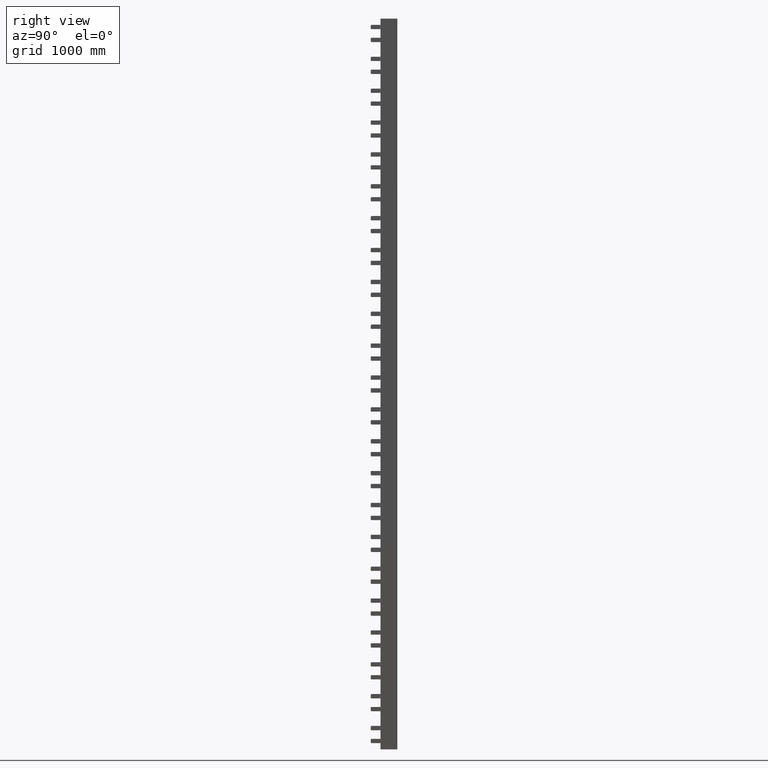
[diagram: clean part render]
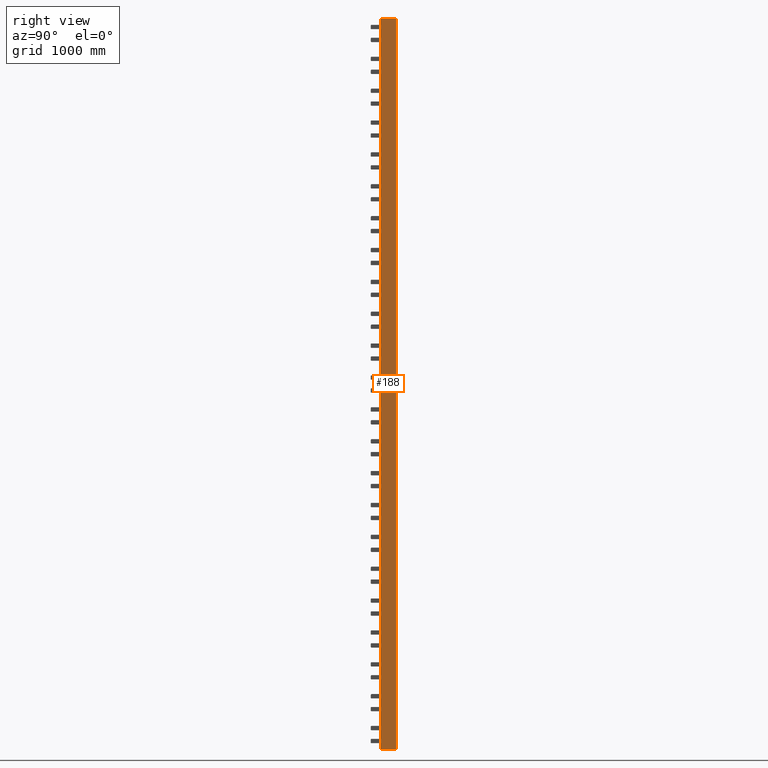
[diagram: same view with one face highlighted and labeled with its STEP entity id]
A machine part, right view. The second image highlights one B-rep face of the part: STEP entity #188.
In plain terms, the highlighted planar face has unit normal (1, 0, 0).
Its self-contained STEP definition (entity closure, byte-faithful):
#149=CARTESIAN_POINT('',(6910.0208871468158,6046.4066631202568,0.0));
#150=DIRECTION('',(1.0,2.162521E-013,0.0));
#151=DIRECTION('',(0.0,0.0,-1.0));
#152=AXIS2_PLACEMENT_3D('',#149,#150,#151);
#153=PLANE('',#152);
#154=CARTESIAN_POINT('',(6910.0208871467676,6266.4066631202204,90.0));
#155=VERTEX_POINT('',#154);
#156=CARTESIAN_POINT('',(6910.0208871467676,6266.4066631202204,-10000.0));
#157=VERTEX_POINT('',#156);
#158=CARTESIAN_POINT('',(6910.0208871467676,6266.4066631202204,90.0));
#159=DIRECTION('',(0.0,0.0,-1.0));
#160=VECTOR('',#159,10090.0);
#161=LINE('',#158,#160);
#162=EDGE_CURVE('',#155,#157,#161,.T.);
#163=ORIENTED_EDGE('',*,*,#162,.F.);
#164=CARTESIAN_POINT('',(6910.020887146813,6049.4066631202577,90.0));
#165=VERTEX_POINT('',#164);
#166=CARTESIAN_POINT('',(6910.0208871467676,6266.4066631202204,90.0));
#167=DIRECTION('',(2.095610E-013,-1.0,0.0));
#168=VECTOR('',#167,216.99999999996362);
#169=LINE('',#166,#168);
#170=EDGE_CURVE('',#155,#165,#169,.T.);
#171=ORIENTED_EDGE('',*,*,#170,.T.);
#172=CARTESIAN_POINT('',(6910.0208871468158,6049.4066631202577,-10000.0));
#173=VERTEX_POINT('',#172);
#174=CARTESIAN_POINT('',(6910.0208871468158,6049.4066631202577,-10000.0));
#175=DIRECTION('',(0.0,0.0,1.0));
#176=VECTOR('',#175,10090.0);
#177=LINE('',#174,#176);
#178=EDGE_CURVE('',#173,#165,#177,.T.);
#179=ORIENTED_EDGE('',*,*,#178,.F.);
#180=CARTESIAN_POINT('',(6910.0208871468158,6049.4066631202577,-10000.0));
#181=DIRECTION('',(-2.095610E-013,1.0,0.0));
#182=VECTOR('',#181,216.99999999996362);
#183=LINE('',#180,#182);
#184=EDGE_CURVE('',#173,#157,#183,.T.);
#185=ORIENTED_EDGE('',*,*,#184,.T.);
#186=EDGE_LOOP('',(#163,#171,#179,#185));
#187=FACE_OUTER_BOUND('',#186,.T.);
#188=ADVANCED_FACE('',(#187),#153,.T.);